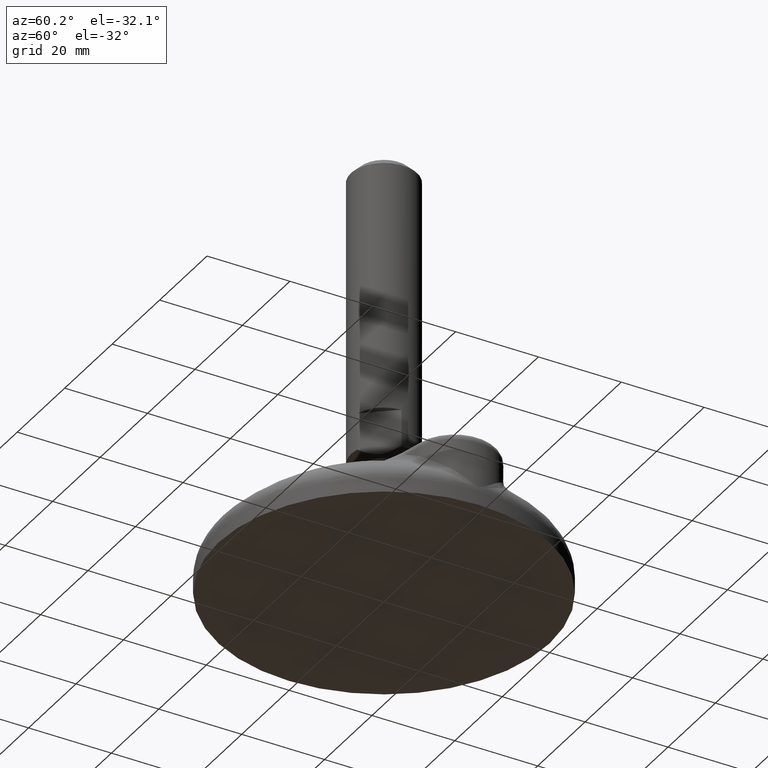
[diagram: clean part render]
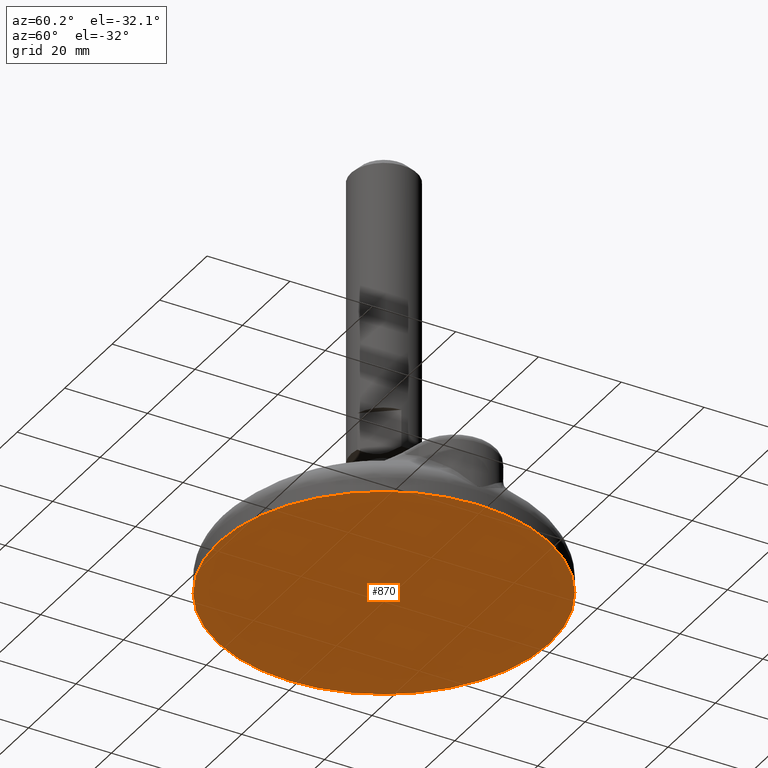
[diagram: same view with one face highlighted and labeled with its STEP entity id]
A machine part, auxiliary view. The second image highlights one B-rep face of the part: STEP entity #870.
In plain terms, the highlighted planar face has unit normal (0, 0, -1).
Its self-contained STEP definition (entity closure, byte-faithful):
#193=FACE_OUTER_BOUND('',#245,.T.);
#245=EDGE_LOOP('',(#749));
#305=CIRCLE('',#987,40.);
#384=VERTEX_POINT('',#2068);
#506=EDGE_CURVE('',#384,#384,#305,.T.);
#749=ORIENTED_EDGE('',*,*,#506,.T.);
#768=PLANE('',#986);
#870=ADVANCED_FACE('',(#193),#768,.T.);
#986=AXIS2_PLACEMENT_3D('',#2067,#1200,#1201);
#987=AXIS2_PLACEMENT_3D('',#2069,#1202,#1203);
#1200=DIRECTION('center_axis',(0.,0.,-1.));
#1201=DIRECTION('ref_axis',(-1.,0.,0.));
#1202=DIRECTION('center_axis',(0.,0.,-1.));
#1203=DIRECTION('ref_axis',(1.,0.,0.));
#2067=CARTESIAN_POINT('Origin',(0.,0.,-3.5));
#2068=CARTESIAN_POINT('',(-40.,4.89858719658941E-15,-3.5));
#2069=CARTESIAN_POINT('Origin',(0.,0.,-3.5));